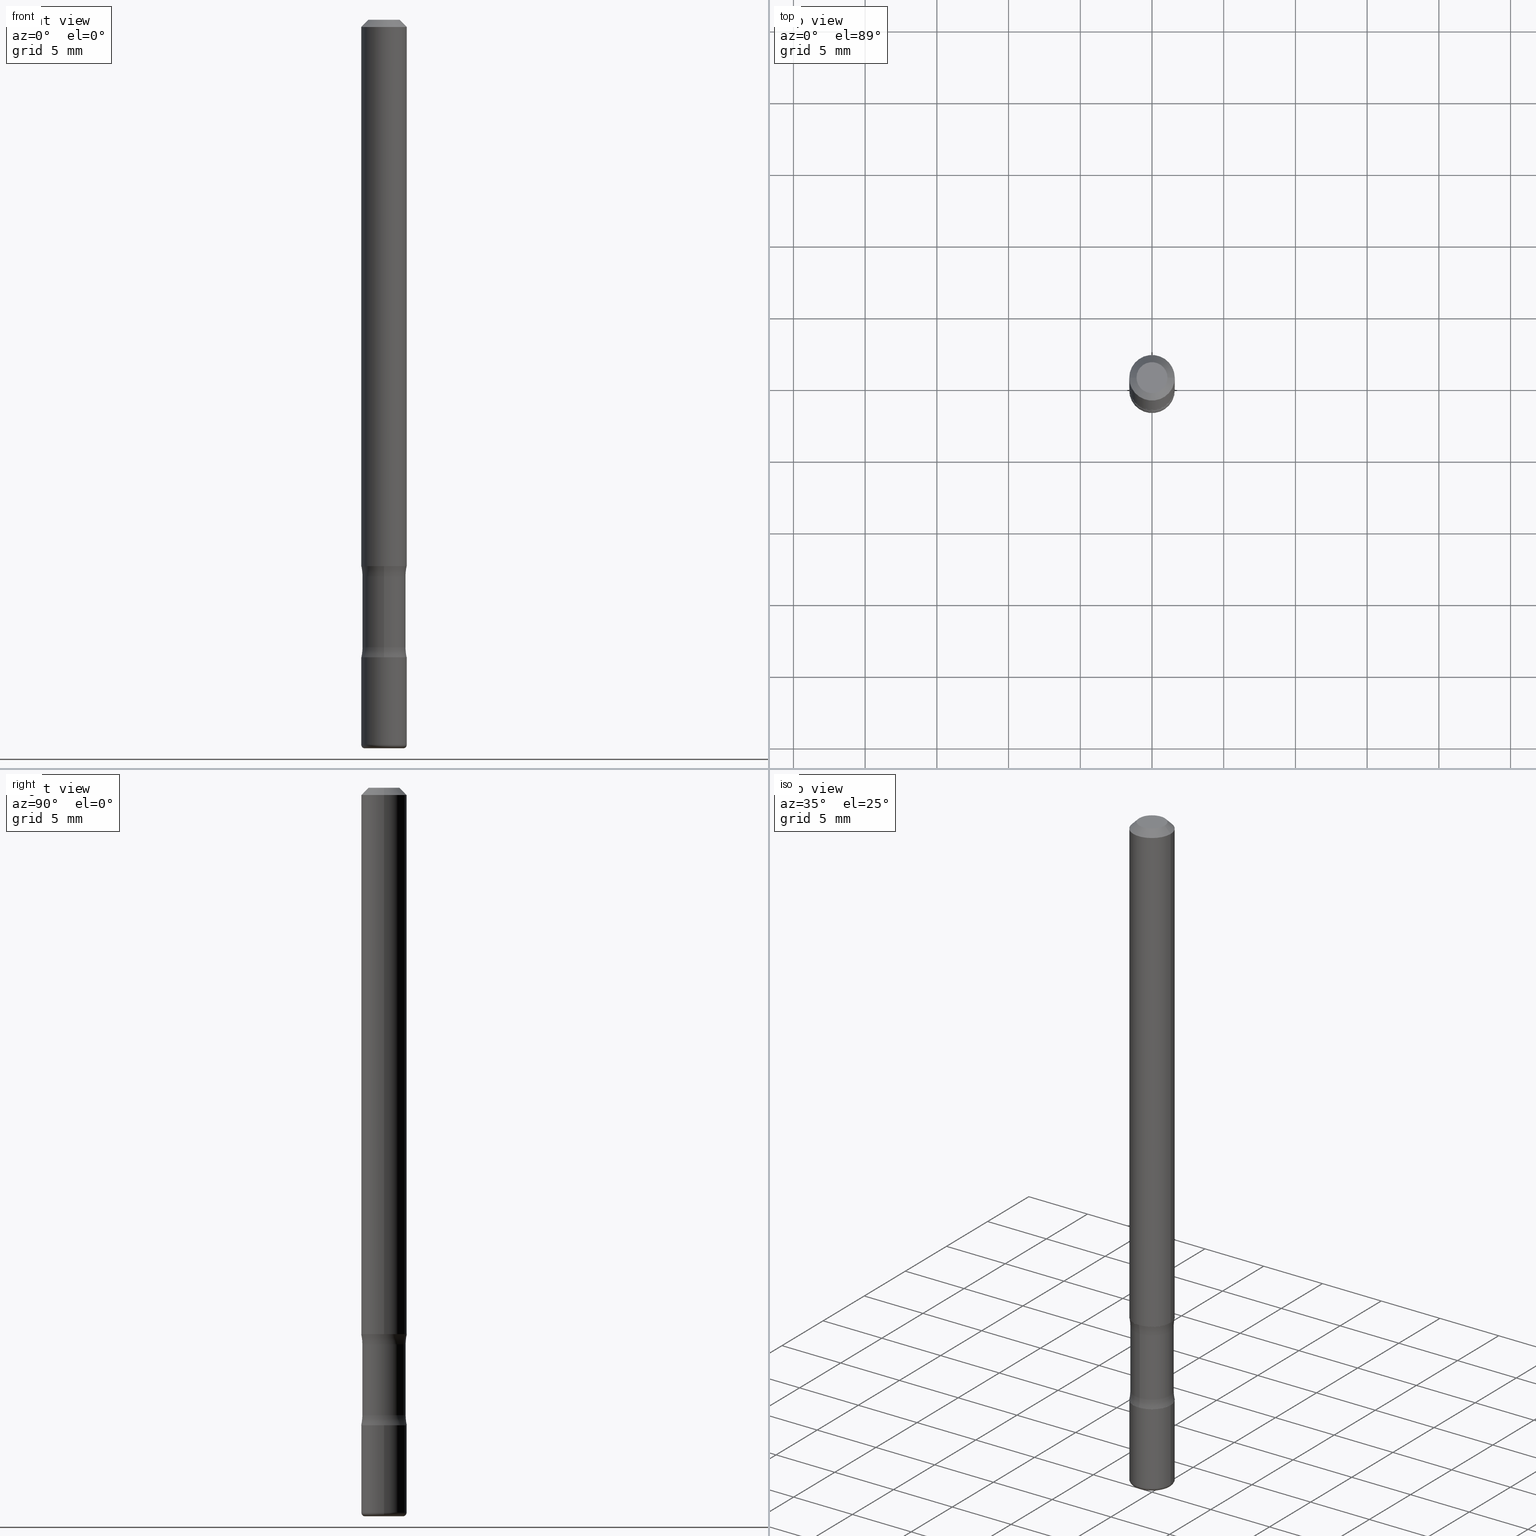
[diagram: canonical four-view strip — front | top / right | iso, engineering-drawing reading convention]
A machine part, canonical four-view strip (front | top / right | iso — engineering-drawing reading convention). The complete STEP part file that produces these views, byte-faithful:
ISO-10303-21;
HEADER;
FILE_DESCRIPTION (( 'STEP AP203' ),
    '1' );
FILE_NAME ('37991.STEP',
    '2024-03-02T02:09:49',
    ( '' ),
    ( '' ),
    'SwSTEP 2.0',
    'SolidWorks 2023',
    '' );
FILE_SCHEMA (( 'CONFIG_CONTROL_DESIGN' ));
ENDSEC;

DATA;
#1 = ORIENTED_EDGE ( 'NONE', *, *, #77, .T. ) ;
#2 = DIRECTION ( 'NONE',  ( -1.000000000000000000, 6.982962677686265922E-15, -4.876176775795935793E-29 ) ) ;
#3 = CARTESIAN_POINT ( 'NONE',  ( -0.06250000000000076328, 4.440892098500680396E-16, -3.074334431409353598E-30 ) ) ;
#4 = VECTOR ( 'NONE', #7, 39.37007874015748143 ) ;
#5 = DIRECTION ( 'NONE',  ( -1.000000000000000000, 6.982962677686265922E-15, -4.883557194083113462E-29 ) ) ;
#6 = ORIENTED_EDGE ( 'NONE', *, *, #362, .T. ) ;
#7 = DIRECTION ( 'NONE',  ( -2.445468806185136877E-29, 3.491481338843145188E-15, 1.000000000000000000 ) ) ;
#8 = DIRECTION ( 'NONE',  ( 8.010757980930134339E-30, -5.846345719468729014E-15, -1.000000000000000000 ) ) ;
#9 = ORIENTED_EDGE ( 'NONE', *, *, #62, .F. ) ;
#10 = DIRECTION ( 'NONE',  ( 6.982962677686267499E-15, 1.000000000000000000, -4.370956789862777762E-15 ) ) ;
#11 = ORIENTED_EDGE ( 'NONE', *, *, #449, .T. ) ;
#12 = CARTESIAN_POINT ( 'NONE',  ( 4.890937612370306439E-31, -6.982962677686338448E-17, -0.02000000000000013572 ) ) ;
#13 = DIRECTION ( 'NONE',  ( 0.000000000000000000, 0.000000000000000000, 1.000000000000000000 ) ) ;
#14 = DIRECTION ( 'NONE',  ( 6.982962677686265922E-15, 1.000000000000000000, -5.846345719468729014E-15 ) ) ;
#15 = EDGE_LOOP ( 'NONE', ( #52, #357, #408, #36 ) ) ;
#16 = DIRECTION ( 'NONE',  ( 6.982962677686265922E-15, 1.000000000000000000, -4.370956789862822727E-15 ) ) ;
#17 = CONICAL_SURFACE ( 'NONE', #466, 0.06250000000000056899, 0.7853981633974477239 ) ;
#18 = CC_DESIGN_APPROVAL ( #226, ( #336 ) ) ;
#19 = DIRECTION ( 'NONE',  ( 1.000000000000000000, -6.982962677686266711E-15, 4.870577812114026993E-29 ) ) ;
#20 = CARTESIAN_POINT ( 'NONE',  ( 4.146134089876587187E-16, 0.05937499999999455713, -1.527775607554112458 ) ) ;
#21 = DATE_AND_TIME ( #29, #205 ) ;
#22 = ORIENTED_EDGE ( 'NONE', *, *, #160, .T. ) ;
#23 = CARTESIAN_POINT ( 'NONE',  ( 0.06250000000000073552, -4.364351673553967477E-16, 3.047610484872495604E-30 ) ) ;
#24 = FACE_OUTER_BOUND ( 'NONE', #225, .T. ) ;
#25 = CARTESIAN_POINT ( 'NONE',  ( 4.079301461300732393E-29, -4.648505913108318079E-15, -1.499999999999998668 ) ) ;
#26 = EDGE_CURVE ( 'NONE', #217, #394, #517, .T. ) ;
#27 = CARTESIAN_POINT ( 'NONE',  ( 3.668203209277701532E-29, -5.237222008264713444E-15, -1.499999999999998668 ) ) ;
#28 = CLOSED_SHELL ( 'NONE', ( #275, #229, #206, #512, #298, #472 ) ) ;
#29 = CALENDAR_DATE ( 2024, 1, 3 ) ;
#30 = DIRECTION ( 'NONE',  ( 2.438088387897960049E-29, -3.491481338843145188E-15, -1.000000000000000000 ) ) ;
#31 = ADVANCED_FACE ( 'NONE', ( #95 ), #43, .T. ) ;
#32 = CIRCLE ( 'NONE', #258, 0.1249999999999999584 ) ;
#33 = AXIS2_PLACEMENT_3D ( 'NONE', #232, #138, #536 ) ;
#34 = EDGE_CURVE ( 'NONE', #211, #347, #546, .T. ) ;
#35 = EDGE_CURVE ( 'NONE', #401, #483, #173, .T. ) ;
#36 = ORIENTED_EDGE ( 'NONE', *, *, #222, .F. ) ;
#37 = SECURITY_CLASSIFICATION_LEVEL ( 'unclassified' ) ;
#38 = CC_DESIGN_PERSON_AND_ORGANIZATION_ASSIGNMENT ( #358, #525, ( #336 ) ) ;
#39 = CIRCLE ( 'NONE', #247, 0.1249999999999999584 ) ;
#40 = DIRECTION ( 'NONE',  ( -6.982962677686266711E-15, -1.000000000000000000, 3.491481338843145583E-15 ) ) ;
#41 = AXIS2_PLACEMENT_3D ( 'NONE', #27, #316, #55 ) ;
#42 = CYLINDRICAL_SURFACE ( 'NONE', #164, 0.06250000000000076328 ) ;
#43 = CYLINDRICAL_SURFACE ( 'NONE', #90, 0.05937499999999967110 ) ;
#44 = DIRECTION ( 'NONE',  ( 2.438088387897960049E-29, -3.491481338843145188E-15, -1.000000000000000000 ) ) ;
#45 = DIRECTION ( 'NONE',  ( -2.445468806185136597E-29, 3.491481338843145583E-15, 1.000000000000000000 ) ) ;
#46 = EDGE_LOOP ( 'NONE', ( #178, #351, #452, #6 ) ) ;
#47 = ADVANCED_FACE ( 'NONE', ( #481 ), #396, .F. ) ;
#48 = APPLICATION_PROTOCOL_DEFINITION ( 'international standard', 'config_control_design', 1994, #172 ) ;
#49 = DIRECTION ( 'NONE',  ( 1.000000000000000000, -6.982962677686265922E-15, 4.876176775795935793E-29 ) ) ;
#50 = DIRECTION ( 'NONE',  ( 6.982962677686266711E-15, 1.000000000000000000, -4.601007147224048087E-15 ) ) ;
#51 = ADVANCED_FACE ( 'NONE', ( #134 ), #42, .T. ) ;
#52 = ORIENTED_EDGE ( 'NONE', *, *, #352, .F. ) ;
#53 = DIRECTION ( 'NONE',  ( 1.000000000000000000, -6.982962677686271444E-15, 0.000000000000000000 ) ) ;
#54 = CIRCLE ( 'NONE', #252, 0.06250000000000090206 ) ;
#55 = DIRECTION ( 'NONE',  ( 1.000000000000000000, -6.982962677686270655E-15, 0.000000000000000000 ) ) ;
#56 = EDGE_LOOP ( 'NONE', ( #516, #271, #1, #445 ) ) ;
#57 = DIRECTION ( 'NONE',  ( 1.000000000000000000, -6.982962677686270655E-15, 0.000000000000000000 ) ) ;
#58 = CARTESIAN_POINT ( 'NONE',  ( 4.890937612370272073E-29, -6.982962677686288799E-15, -1.999999999999999334 ) ) ;
#59 = DIRECTION ( 'NONE',  ( 1.000000000000000000, -6.982962677686271444E-15, 4.883557194083114583E-29 ) ) ;
#60 = DIRECTION ( 'NONE',  ( 6.982962677686265922E-15, 1.000000000000000000, -5.846345719468729014E-15 ) ) ;
#61 = ORIENTED_EDGE ( 'NONE', *, *, #35, .F. ) ;
#62 = EDGE_CURVE ( 'NONE', #88, #103, #148, .T. ) ;
#63 = DIRECTION ( 'NONE',  ( -2.445468806185136597E-29, 3.491481338843145583E-15, 1.000000000000000000 ) ) ;
#64 = CARTESIAN_POINT ( 'NONE',  ( 0.000000000000000000, 0.000000000000000000, 0.000000000000000000 ) ) ;
#65 = ORIENTED_EDGE ( 'NONE', *, *, #115, .F. ) ;
#66 = DIRECTION ( 'NONE',  ( -2.445468806185136597E-29, 3.491481338843145583E-15, 1.000000000000000000 ) ) ;
#67 = DIRECTION ( 'NONE',  ( 1.000000000000000000, -6.860497997771530774E-15, 4.811960108362550720E-29 ) ) ;
#68 = LOCAL_TIME ( 21, 9, 49.00000000000000000, #81 ) ;
#69 = DIRECTION ( 'NONE',  ( -2.445468806185136597E-29, 3.491481338843145583E-15, 1.000000000000000000 ) ) ;
#70 = CARTESIAN_POINT ( 'NONE',  ( 4.866482924308417164E-29, -6.948047864297853205E-15, -1.989999999999998215 ) ) ;
#71 = DATE_TIME_ROLE ( 'classification_date' ) ;
#72 = PERSON_AND_ORGANIZATION ( #439, #482 ) ;
#73 = DIRECTION ( 'NONE',  ( 1.000000000000000000, -6.982962677686270655E-15, 0.000000000000000000 ) ) ;
#74 = DIRECTION ( 'NONE',  ( 7.105427357601001859E-15, 1.000000000000000000, -3.491481338843145583E-15 ) ) ;
#75 = CIRCLE ( 'NONE', #176, 0.01000000000000085022 ) ;
#76 = CIRCLE ( 'NONE', #204, 0.06249999999999997224 ) ;
#77 = EDGE_CURVE ( 'NONE', #221, #126, #307, .T. ) ;
#78 =( NAMED_UNIT ( * ) SI_UNIT ( $, .STERADIAN. ) SOLID_ANGLE_UNIT ( ) );
#79 = CARTESIAN_POINT ( 'NONE',  ( 2.967759138016698062E-16, 0.04250000000000050265, -1.761332880864881203E-16 ) ) ;
#80 = CC_DESIGN_APPROVAL ( #202, ( #309 ) ) ;
#81 = COORDINATED_UNIVERSAL_TIME_OFFSET ( 5, 0, .BEHIND. ) ;
#82 = EDGE_LOOP ( 'NONE', ( #183, #254, #22, #320 ) ) ;
#83 = DIRECTION ( 'NONE',  ( -1.000000000000000000, 6.982962677686265922E-15, -4.883557194083113462E-29 ) ) ;
#84 = EDGE_CURVE ( 'NONE', #93, #390, #39, .T. ) ;
#85 = ORIENTED_EDGE ( 'NONE', *, *, #338, .F. ) ;
#86 = PERSON_AND_ORGANIZATION_ROLE ( 'classification_officer' ) ;
#87 = LINE ( 'NONE', #3, #4 ) ;
#88 = VERTEX_POINT ( 'NONE', #523 ) ;
#89 = ORIENTED_EDGE ( 'NONE', *, *, #156, .F. ) ;
#90 = AXIS2_PLACEMENT_3D ( 'NONE', #264, #441, #50 ) ;
#91 = APPROVAL_PERSON_ORGANIZATION ( #108, #505, #278 ) ;
#92 = CARTESIAN_POINT ( 'NONE',  ( 4.364351673554390997E-16, 0.06249999999999455297, -1.749999999999999334 ) ) ;
#93 = VERTEX_POINT ( 'NONE', #92 ) ;
#94 = LINE ( 'NONE', #391, #190 ) ;
#95 = FACE_OUTER_BOUND ( 'NONE', #141, .T. ) ;
#96 = ORIENTED_EDGE ( 'NONE', *, *, #492, .F. ) ;
#97 = ORIENTED_EDGE ( 'NONE', *, *, #449, .F. ) ;
#98 = CARTESIAN_POINT ( 'NONE',  ( 4.866482924308417164E-29, -6.948047864297853205E-15, -1.989999999999998215 ) ) ;
#99 = VECTOR ( 'NONE', #130, 39.37007874015748143 ) ;
#100 = ORIENTED_EDGE ( 'NONE', *, *, #438, .F. ) ;
#101 = CIRCLE ( 'NONE', #420, 0.04250000000000050265 ) ;
#102 = DIRECTION ( 'NONE',  ( 6.860497997771531562E-15, 1.000000000000000000, 0.000000000000000000 ) ) ;
#103 = VERTEX_POINT ( 'NONE', #389 ) ;
#104 = DIRECTION ( 'NONE',  ( 8.010757980930134339E-30, -5.846345719468729014E-15, -1.000000000000000000 ) ) ;
#105 = ADVANCED_FACE ( 'NONE', ( #478 ), #393, .F. ) ;
#106 = ORIENTED_EDGE ( 'NONE', *, *, #201, .T. ) ;
#107 = CYLINDRICAL_SURFACE ( 'NONE', #289, 0.06250000000000073552 ) ;
#108 = PERSON_AND_ORGANIZATION ( #439, #482 ) ;
#109 = CARTESIAN_POINT ( 'NONE',  ( 4.146134089876643393E-16, 0.05937499999999401590, -1.722224392445885544 ) ) ;
#110 = MANIFOLD_SOLID_BREP ( 'Body-Move/Copy2[2]', #28 ) ;
#111 = CARTESIAN_POINT ( 'NONE',  ( 0.06250000000000056899, -4.986107516375879651E-16, -0.02000000000000013572 ) ) ;
#112 = PLANE ( 'NONE',  #535 ) ;
#113 = CONICAL_SURFACE ( 'NONE', #143, 0.06250000000000056899, 0.7853981633974477239 ) ;
#114 = CIRCLE ( 'NONE', #509, 0.05937499999999996253 ) ;
#115 = EDGE_CURVE ( 'NONE', #432, #267, #256, .T. ) ;
#116 = CARTESIAN_POINT ( 'NONE',  ( -2.417785108228764368E-28, -4.861112258114085426E-14, -1.999999999999998890 ) ) ;
#117 = EDGE_CURVE ( 'NONE', #221, #390, #349, .T. ) ;
#118 = APPROVAL_DATE_TIME ( #21, #202 ) ;
#119 = CIRCLE ( 'NONE', #388, 0.05250000000000046296 ) ;
#120 = CIRCLE ( 'NONE', #494, 0.06250000000000062450 ) ;
#121 = TOROIDAL_SURFACE ( 'NONE', #237, 0.1843749999999994560, 0.1250000000000000000 ) ;
#122 = PERSON_AND_ORGANIZATION_ROLE ( 'design_supplier' ) ;
#123 = ORIENTED_EDGE ( 'NONE', *, *, #84, .F. ) ;
#124 = EDGE_CURVE ( 'NONE', #221, #242, #493, .T. ) ;
#125 = ORIENTED_EDGE ( 'NONE', *, *, #507, .F. ) ;
#126 = VERTEX_POINT ( 'NONE', #261 ) ;
#127 = FACE_OUTER_BOUND ( 'NONE', #135, .T. ) ;
#128 = ORIENTED_EDGE ( 'NONE', *, *, #507, .T. ) ;
#129 = DIRECTION ( 'NONE',  ( 8.010757980930134339E-30, -5.846345719468729014E-15, -1.000000000000000000 ) ) ;
#130 = DIRECTION ( 'NONE',  ( -0.7071067811865471286, 2.468850131082252722E-15, -0.7071067811865479058 ) ) ;
#131 = APPROVAL_ROLE ( '' ) ;
#132 = EDGE_LOOP ( 'NONE', ( #97, #140, #168, #123 ) ) ;
#133 = PLANE ( 'NONE',  #199 ) ;
#134 = FACE_OUTER_BOUND ( 'NONE', #429, .T. ) ;
#135 = EDGE_LOOP ( 'NONE', ( #497, #61 ) ) ;
#136 = COORDINATED_UNIVERSAL_TIME_OFFSET ( 5, 0, .BEHIND. ) ;
#137 = DATE_TIME_ROLE ( 'creation_date' ) ;
#138 = DIRECTION ( 'NONE',  ( 8.010757980930134339E-30, -5.846345719468729014E-15, -1.000000000000000000 ) ) ;
#139 = CARTESIAN_POINT ( 'NONE',  ( -1.264904318339082863E-15, -0.1843750000000058675, -1.722224392445883545 ) ) ;
#140 = ORIENTED_EDGE ( 'NONE', *, *, #198, .T. ) ;
#141 = EDGE_LOOP ( 'NONE', ( #144, #400, #473, #231 ) ) ;
#142 = DIRECTION ( 'NONE',  ( 6.982962677686265922E-15, 1.000000000000000000, -5.846345719468729014E-15 ) ) ;
#143 = AXIS2_PLACEMENT_3D ( 'NONE', #244, #150, #526 ) ;
#144 = ORIENTED_EDGE ( 'NONE', *, *, #124, .T. ) ;
#145 = TOROIDAL_SURFACE ( 'NONE', #212, 0.1843749999999994560, 0.1250000000000000000 ) ;
#146 = CC_DESIGN_PERSON_AND_ORGANIZATION_ASSIGNMENT ( #72, #235, ( #340 ) ) ;
#147 = DIRECTION ( 'NONE',  ( 8.010757980930134339E-30, -5.846345719468729014E-15, -1.000000000000000000 ) ) ;
#148 = CIRCLE ( 'NONE', #162, 0.06250000000000062450 ) ;
#149 = DIRECTION ( 'NONE',  ( -2.445468806185136597E-29, 3.491481338843145583E-15, 1.000000000000000000 ) ) ;
#150 = DIRECTION ( 'NONE',  ( 2.445468806185136597E-29, -3.491481338843145583E-15, -1.000000000000000000 ) ) ;
#151 = LINE ( 'NONE', #23, #345 ) ;
#152 = DIRECTION ( 'NONE',  ( 6.982962677686265922E-15, 1.000000000000000000, -4.370956789862822727E-15 ) ) ;
#153 = DIRECTION ( 'NONE',  ( 1.000000000000000000, -6.982962677686270655E-15, 0.000000000000000000 ) ) ;
#154 = ORIENTED_EDGE ( 'NONE', *, *, #62, .T. ) ;
#155 = FACE_OUTER_BOUND ( 'NONE', #273, .T. ) ;
#156 = EDGE_CURVE ( 'NONE', #126, #314, #369, .T. ) ;
#157 = COORDINATED_UNIVERSAL_TIME_OFFSET ( 5, 0, .BEHIND. ) ;
#158 = AXIS2_PLACEMENT_3D ( 'NONE', #522, #315, #299 ) ;
#159 = AXIS2_PLACEMENT_3D ( 'NONE', #360, #175, #208 ) ;
#160 = EDGE_CURVE ( 'NONE', #314, #126, #76, .T. ) ;
#161 = CARTESIAN_POINT ( 'NONE',  ( 1.287483743698442698E-15, 0.1843749999999946820, -1.527775607554112680 ) ) ;
#162 = AXIS2_PLACEMENT_3D ( 'NONE', #224, #45, #306 ) ;
#163 = CIRCLE ( 'NONE', #33, 0.06250000000000062450 ) ;
#164 = AXIS2_PLACEMENT_3D ( 'NONE', #300, #519, #440 ) ;
#165 = DIRECTION ( 'NONE',  ( 8.010757980930134339E-30, -5.846345719468729014E-15, -1.000000000000000000 ) ) ;
#166 = ORIENTED_EDGE ( 'NONE', *, *, #381, .F. ) ;
#167 = DIRECTION ( 'NONE',  ( 8.010757980930134339E-30, -5.846345719468729014E-15, -1.000000000000000000 ) ) ;
#168 = ORIENTED_EDGE ( 'NONE', *, *, #492, .T. ) ;
#169 = DIRECTION ( 'NONE',  ( -2.445468806185136597E-29, 3.491481338843145583E-15, 1.000000000000000000 ) ) ;
#170 = PRODUCT_RELATED_PRODUCT_CATEGORY ( 'detail', '', ( #203 ) ) ;
#171 = EDGE_LOOP ( 'NONE', ( #192, #11 ) ) ;
#172 = APPLICATION_CONTEXT ( 'configuration controlled 3d designs of mechanical parts and assemblies' ) ;
#173 = CIRCLE ( 'NONE', #41, 0.06250000000000090206 ) ;
#174 = EDGE_LOOP ( 'NONE', ( #262, #154 ) ) ;
#175 = DIRECTION ( 'NONE',  ( 8.010757980930134339E-30, -5.846345719468729014E-15, -1.000000000000000000 ) ) ;
#176 = AXIS2_PLACEMENT_3D ( 'NONE', #475, #40, #435 ) ;
#177 = DIRECTION ( 'NONE',  ( -8.010757980930137142E-30, 5.846345719468729014E-15, 1.000000000000000000 ) ) ;
#178 = ORIENTED_EDGE ( 'NONE', *, *, #198, .F. ) ;
#179 = DATE_AND_TIME ( #227, #520 ) ;
#180 = LINE ( 'NONE', #550, #467 ) ;
#181 = ADVANCED_FACE ( 'NONE', ( #503 ), #121, .F. ) ;
#182 = DIRECTION ( 'NONE',  ( 1.000000000000000000, -6.982962677686265922E-15, 4.876176775795935793E-29 ) ) ;
#183 = ORIENTED_EDGE ( 'NONE', *, *, #301, .F. ) ;
#184 = CARTESIAN_POINT ( 'NONE',  ( 4.117655442741518235E-29, -4.787830424982076550E-15, -1.527775607554111570 ) ) ;
#185 = EDGE_CURVE ( 'NONE', #347, #479, #518, .T. ) ;
#186 = ORIENTED_EDGE ( 'NONE', *, *, #115, .T. ) ;
#187 = FACE_OUTER_BOUND ( 'NONE', #387, .T. ) ;
#188 = DIRECTION ( 'NONE',  ( 8.010757980930134339E-30, -5.846345719468729014E-15, -1.000000000000000000 ) ) ;
#189 = AXIS2_PLACEMENT_3D ( 'NONE', #12, #319, #197 ) ;
#190 = VECTOR ( 'NONE', #437, 39.37007874015748143 ) ;
#191 = DIRECTION ( 'NONE',  ( 6.982962677686265922E-15, 1.000000000000000000, -5.846345719468729014E-15 ) ) ;
#192 = ORIENTED_EDGE ( 'NONE', *, *, #458, .T. ) ;
#193 = FACE_OUTER_BOUND ( 'NONE', #82, .T. ) ;
#194 = FACE_OUTER_BOUND ( 'NONE', #218, .T. ) ;
#195 = ORIENTED_EDGE ( 'NONE', *, *, #490, .F. ) ;
#196 = DIRECTION ( 'NONE',  ( -2.445468806185136877E-29, 3.491481338843145188E-15, 1.000000000000000000 ) ) ;
#197 = DIRECTION ( 'NONE',  ( 1.000000000000000000, -6.982962677686265922E-15, 0.000000000000000000 ) ) ;
#198 = EDGE_CURVE ( 'NONE', #499, #446, #32, .T. ) ;
#199 = AXIS2_PLACEMENT_3D ( 'NONE', #348, #305, #49 ) ;
#200 = CIRCLE ( 'NONE', #251, 0.06250000000000056899 ) ;
#201 = EDGE_CURVE ( 'NONE', #211, #312, #119, .T. ) ;
#202 = APPROVAL ( #374, 'UNSPECIFIED' ) ;
#203 = PRODUCT ( '37991', '37991', '', ( #548 ) ) ;
#204 = AXIS2_PLACEMENT_3D ( 'NONE', #25, #377, #152 ) ;
#205 = LOCAL_TIME ( 21, 9, 49.00000000000000000, #418 ) ;
#206 = ADVANCED_FACE ( 'NONE', ( #370 ), #113, .T. ) ;
#207 = EDGE_CURVE ( 'NONE', #312, #211, #245, .T. ) ;
#208 = DIRECTION ( 'NONE',  ( 6.982962677686265133E-15, 1.000000000000000000, -4.601007147224025211E-15 ) ) ;
#209 = DIRECTION ( 'NONE',  ( 6.982962677686266711E-15, 1.000000000000000000, -4.601007147224070964E-15 ) ) ;
#210 = TOROIDAL_SURFACE ( 'NONE', #508, 0.05250000000000046296, 0.01000000000000085022 ) ;
#211 = VERTEX_POINT ( 'NONE', #285 ) ;
#212 = AXIS2_PLACEMENT_3D ( 'NONE', #184, #453, #14 ) ;
#213 = CARTESIAN_POINT ( 'NONE',  ( 1.287483743698447629E-15, 0.1843749999999939881, -1.722224392445885766 ) ) ;
#214 = ORIENTED_EDGE ( 'NONE', *, *, #301, .T. ) ;
#215 = PERSON_AND_ORGANIZATION ( #439, #482 ) ;
#216 = DIRECTION ( 'NONE',  ( -6.982962677686265922E-15, -1.000000000000000000, 5.846345719468729014E-15 ) ) ;
#217 = VERTEX_POINT ( 'NONE', #409 ) ;
#218 = EDGE_LOOP ( 'NONE', ( #257, #186, #486, #427 ) ) ;
#219 = DATE_AND_TIME ( #487, #551 ) ;
#220 = AXIS2_PLACEMENT_3D ( 'NONE', #98, #447, #57 ) ;
#221 = VERTEX_POINT ( 'NONE', #20 ) ;
#222 = EDGE_CURVE ( 'NONE', #394, #267, #469, .T. ) ;
#223 = CARTESIAN_POINT ( 'NONE',  ( 0.06250000000000076328, -4.364351673553969942E-16, 3.047610484872497355E-30 ) ) ;
#224 = CARTESIAN_POINT ( 'NONE',  ( 4.279570410823987363E-29, -6.110092342975501516E-15, -1.749999999999999112 ) ) ;
#225 = EDGE_LOOP ( 'NONE', ( #442, #398, #303, #85 ) ) ;
#226 = APPROVAL ( #395, 'UNSPECIFIED' ) ;
#227 = CALENDAR_DATE ( 2024, 1, 3 ) ;
#228 = CARTESIAN_POINT ( 'NONE',  ( -4.287811248606822657E-16, -0.06250000000000677236, -1.749999999999998890 ) ) ;
#229 = ADVANCED_FACE ( 'NONE', ( #194 ), #17, .T. ) ;
#230 = CARTESIAN_POINT ( 'NONE',  ( 4.890937612370272073E-29, -6.982962677686288799E-15, -1.999999999999999334 ) ) ;
#231 = ORIENTED_EDGE ( 'NONE', *, *, #117, .F. ) ;
#232 = CARTESIAN_POINT ( 'NONE',  ( 4.279570410823986242E-29, -6.110092342975502304E-15, -1.749999999999999112 ) ) ;
#233 = CARTESIAN_POINT ( 'NONE',  ( 4.890937612370306439E-31, -6.982962677686338448E-17, -0.02000000000000013572 ) ) ;
#234 = DIRECTION ( 'NONE',  ( 1.000000000000000000, 0.000000000000000000, 0.000000000000000000 ) ) ;
#235 = PERSON_AND_ORGANIZATION_ROLE ( 'creator' ) ;
#236 = DIRECTION ( 'NONE',  ( 1.000000000000000000, -6.982962677686265922E-15, 4.876176775795935793E-29 ) ) ;
#237 = AXIS2_PLACEMENT_3D ( 'NONE', #239, #147, #191 ) ;
#238 = CC_DESIGN_APPROVAL ( #505, ( #340 ) ) ;
#239 = CARTESIAN_POINT ( 'NONE',  ( 4.117655442741518235E-29, -4.787830424982076550E-15, -1.527775607554111570 ) ) ;
#240 = DATE_AND_TIME ( #288, #332 ) ;
#241 = CARTESIAN_POINT ( 'NONE',  ( 1.357006838635785746E-45, -1.937446121494581442E-31, -5.549066237130534971E-17 ) ) ;
#242 = VERTEX_POINT ( 'NONE', #325 ) ;
#243 = FACE_OUTER_BOUND ( 'NONE', #527, .T. ) ;
#244 = CARTESIAN_POINT ( 'NONE',  ( 4.890937612370306439E-31, -6.982962677686338448E-17, -0.02000000000000013572 ) ) ;
#245 = CIRCLE ( 'NONE', #549, 0.05250000000000046296 ) ;
#246 = CIRCLE ( 'NONE', #269, 0.04250000000000050265 ) ;
#247 = AXIS2_PLACEMENT_3D ( 'NONE', #213, #5, #560 ) ;
#248 = CC_DESIGN_DATE_AND_TIME_ASSIGNMENT ( #179, #137, ( #336 ) ) ;
#249 = CARTESIAN_POINT ( 'NONE',  ( 4.866482924308417164E-29, -6.948047864297853205E-15, -1.989999999999998215 ) ) ;
#250 = ADVANCED_FACE ( 'NONE', ( #464 ), #112, .F. ) ;
#251 = AXIS2_PLACEMENT_3D ( 'NONE', #559, #169, #353 ) ;
#252 = AXIS2_PLACEMENT_3D ( 'NONE', #461, #498, #153 ) ;
#253 = CALENDAR_DATE ( 2024, 1, 3 ) ;
#254 = ORIENTED_EDGE ( 'NONE', *, *, #286, .T. ) ;
#255 = ADVANCED_FACE ( 'NONE', ( #187 ), #210, .T. ) ;
#256 = LINE ( 'NONE', #311, #552 ) ;
#257 = ORIENTED_EDGE ( 'NONE', *, *, #468, .F. ) ;
#258 = AXIS2_PLACEMENT_3D ( 'NONE', #139, #537, #102 ) ;
#259 = ORIENTED_EDGE ( 'NONE', *, *, #342, .T. ) ;
#260 = CARTESIAN_POINT ( 'NONE',  ( -4.287811248606790116E-16, -0.06250000000000452416, -1.499999999999998446 ) ) ;
#261 = CARTESIAN_POINT ( 'NONE',  ( 4.364351673554319013E-16, 0.06249999999999526074, -1.499999999999999112 ) ) ;
#262 = ORIENTED_EDGE ( 'NONE', *, *, #322, .T. ) ;
#263 = APPLICATION_CONTEXT ( 'configuration controlled 3d designs of mechanical parts and assemblies' ) ;
#264 = CARTESIAN_POINT ( 'NONE',  ( 4.479839360347238409E-29, -7.571678772842681008E-15, -1.999999999999998446 ) ) ;
#265 = CARTESIAN_POINT ( 'NONE',  ( 0.05250000000000046296, -7.349568218264821903E-15, -1.999999999999999334 ) ) ;
#266 = ADVANCED_FACE ( 'NONE', ( #243 ), #372, .T. ) ;
#267 = VERTEX_POINT ( 'NONE', #111 ) ;
#268 = AXIS2_PLACEMENT_3D ( 'NONE', #161, #83, #344 ) ;
#269 = AXIS2_PLACEMENT_3D ( 'NONE', #241, #149, #19 ) ;
#270 = DIRECTION ( 'NONE',  ( 8.010757980930134339E-30, -5.846345719468729014E-15, -1.000000000000000000 ) ) ;
#271 = ORIENTED_EDGE ( 'NONE', *, *, #124, .F. ) ;
#272 = DIRECTION ( 'NONE',  ( 2.445468806185136597E-29, -3.491481338843145583E-15, -1.000000000000000000 ) ) ;
#273 = EDGE_LOOP ( 'NONE', ( #368, #524 ) ) ;
#274 = FACE_OUTER_BOUND ( 'NONE', #132, .T. ) ;
#275 = ADVANCED_FACE ( 'NONE', ( #416 ), #107, .T. ) ;
#276 = ORIENTED_EDGE ( 'NONE', *, *, #34, .F. ) ;
#277 = DIRECTION ( 'NONE',  ( -2.445468806185136597E-29, 3.491481338843145583E-15, 1.000000000000000000 ) ) ;
#278 = APPROVAL_ROLE ( '' ) ;
#279 = CARTESIAN_POINT ( 'NONE',  ( -4.180615967391622360E-16, -0.05937500000000592304, -1.722224392445884877 ) ) ;
#280 = CARTESIAN_POINT ( 'NONE',  ( 0.000000000000000000, 0.000000000000000000, 0.000000000000000000 ) ) ;
#281 = CARTESIAN_POINT ( 'NONE',  ( 4.259337010429733699E-29, -5.944818127683673811E-15, -1.722224392445884655 ) ) ;
#282 = AXIS2_PLACEMENT_3D ( 'NONE', #412, #361, #73 ) ;
#283 = TOROIDAL_SURFACE ( 'NONE', #515, 0.1843749999999999278, 0.1249999999999999584 ) ;
#284 = DIRECTION ( 'NONE',  ( -2.445468806185136597E-29, 3.491481338843145583E-15, 1.000000000000000000 ) ) ;
#285 = CARTESIAN_POINT ( 'NONE',  ( -0.05250000000000046296, -6.556943197930007510E-15, -1.999999999999999334 ) ) ;
#286 = EDGE_CURVE ( 'NONE', #242, #314, #339, .T. ) ;
#287 = DESIGN_CONTEXT ( 'detailed design', #172, 'design' ) ;
#288 = CALENDAR_DATE ( 2024, 1, 3 ) ;
#289 = AXIS2_PLACEMENT_3D ( 'NONE', #280, #277, #182 ) ;
#290 = AXIS2_PLACEMENT_3D ( 'NONE', #79, #44, #392 ) ;
#291 = AXIS2_PLACEMENT_3D ( 'NONE', #428, #129, #209 ) ;
#292 = ADVANCED_FACE ( 'NONE', ( #155 ), #333, .T. ) ;
#293 = MANIFOLD_SOLID_BREP ( 'Body-Move/Copy2[1]', #343 ) ;
#294 = AXIS2_PLACEMENT_3D ( 'NONE', #249, #450, #59 ) ;
#295 = ADVANCED_FACE ( 'NONE', ( #528 ), #558, .T. ) ;
#296 = PERSON_AND_ORGANIZATION ( #439, #482 ) ;
#297 = DIRECTION ( 'NONE',  ( 8.010757980930137142E-30, -5.846345719468729014E-15, -1.000000000000000000 ) ) ;
#298 = ADVANCED_FACE ( 'NONE', ( #127 ), #133, .F. ) ;
#299 = DIRECTION ( 'NONE',  ( 6.982962677686266711E-15, 1.000000000000000000, -4.601007147224070964E-15 ) ) ;
#300 = CARTESIAN_POINT ( 'NONE',  ( 0.000000000000000000, 0.000000000000000000, 0.000000000000000000 ) ) ;
#301 = EDGE_CURVE ( 'NONE', #242, #221, #514, .T. ) ;
#302 = CC_DESIGN_DATE_AND_TIME_ASSIGNMENT ( #426, #71, ( #309 ) ) ;
#303 = ORIENTED_EDGE ( 'NONE', *, *, #495, .F. ) ;
#304 = PERSON_AND_ORGANIZATION ( #439, #482 ) ;
#305 = DIRECTION ( 'NONE',  ( -2.438088387897960049E-29, 3.491481338843145188E-15, 1.000000000000000000 ) ) ;
#306 = DIRECTION ( 'NONE',  ( 1.000000000000000000, -6.982962677686271444E-15, 0.000000000000000000 ) ) ;
#307 = CIRCLE ( 'NONE', #268, 0.1250000000000000000 ) ;
#308 = EDGE_LOOP ( 'NONE', ( #363, #554, #359, #195 ) ) ;
#309 = SECURITY_CLASSIFICATION ( '', '', #37 ) ;
#310 = DIRECTION ( 'NONE',  ( -2.445468806185136597E-29, 3.491481338843145583E-15, 1.000000000000000000 ) ) ;
#311 = CARTESIAN_POINT ( 'NONE',  ( 0.06250000000000056899, -4.986107516375879651E-16, -0.02000000000000013572 ) ) ;
#312 = VERTEX_POINT ( 'NONE', #265 ) ;
#313 = COORDINATED_UNIVERSAL_TIME_OFFSET ( 5, 0, .BEHIND. ) ;
#314 = VERTEX_POINT ( 'NONE', #260 ) ;
#315 = DIRECTION ( 'NONE',  ( 8.010757980930134339E-30, -5.846345719468729014E-15, -1.000000000000000000 ) ) ;
#316 = DIRECTION ( 'NONE',  ( -2.445468806185136597E-29, 3.491481338843145583E-15, 1.000000000000000000 ) ) ;
#317 = CARTESIAN_POINT ( 'NONE',  ( -0.06250000000000056899, 3.666055405785322169E-16, -0.02000000000000013572 ) ) ;
#318 = CARTESIAN_POINT ( 'NONE',  ( 4.259337010429733699E-29, -5.944818127683673811E-15, -1.722224392445884655 ) ) ;
#319 = DIRECTION ( 'NONE',  ( -2.445468806185136597E-29, 3.491481338843145583E-15, 1.000000000000000000 ) ) ;
#320 = ORIENTED_EDGE ( 'NONE', *, *, #77, .F. ) ;
#321 = AXIS2_PLACEMENT_3D ( 'NONE', #532, #8, #506 ) ;
#322 = EDGE_CURVE ( 'NONE', #103, #88, #480, .T. ) ;
#323 = ORIENTED_EDGE ( 'NONE', *, *, #322, .F. ) ;
#324 = CARTESIAN_POINT ( 'NONE',  ( 0.04250000000000050265, -3.950909582714408367E-16, -5.549066237130292766E-17 ) ) ;
#325 = CARTESIAN_POINT ( 'NONE',  ( -4.180615967391589820E-16, -0.05937500000000418832, -1.527775607554111792 ) ) ;
#326 = SHAPE_DEFINITION_REPRESENTATION ( #378, #451 ) ;
#327 = FACE_OUTER_BOUND ( 'NONE', #15, .T. ) ;
#328 = DIRECTION ( 'NONE',  ( -1.000000000000000000, 6.982962677686265922E-15, 0.000000000000000000 ) ) ;
#329 = ORIENTED_EDGE ( 'NONE', *, *, #338, .T. ) ;
#330 = CARTESIAN_POINT ( 'NONE',  ( -0.06250000000000056899, 3.666055405785322169E-16, -0.02000000000000013572 ) ) ;
#331 = DIRECTION ( 'NONE',  ( 8.010757980930134339E-30, -5.846345719468729014E-15, -1.000000000000000000 ) ) ;
#332 = LOCAL_TIME ( 21, 9, 49.00000000000000000, #157 ) ;
#333 = PLANE ( 'NONE',  #424 ) ;
#334 = UNCERTAINTY_MEASURE_WITH_UNIT (LENGTH_MEASURE( 1.000000000000000082E-05 ), #470, 'distance_accuracy_value', 'NONE');
#335 = PERSON_AND_ORGANIZATION ( #439, #482 ) ;
#336 = PRODUCT_DEFINITION ( 'UNKNOWN', '', #340, #287 ) ;
#337 = LENGTH_MEASURE_WITH_UNIT ( LENGTH_MEASURE( 0.02539999999999999897 ), #375 );
#338 = EDGE_CURVE ( 'NONE', #312, #479, #75, .T. ) ;
#339 = CIRCLE ( 'NONE', #533, 0.1250000000000000000 ) ;
#340 = PRODUCT_DEFINITION_FORMATION_WITH_SPECIFIED_SOURCE ( 'ANY', '', #203, .NOT_KNOWN. ) ;
#341 = DIRECTION ( 'NONE',  ( -2.445468806185136877E-29, 3.491481338843145188E-15, 1.000000000000000000 ) ) ;
#342 = EDGE_CURVE ( 'NONE', #347, #88, #87, .T. ) ;
#343 = CLOSED_SHELL ( 'NONE', ( #295, #545, #292, #255, #51, #250 ) ) ;
#344 = DIRECTION ( 'NONE',  ( -6.982962677686265922E-15, -1.000000000000000000, 0.000000000000000000 ) ) ;
#345 = VECTOR ( 'NONE', #196, 39.37007874015748143 ) ;
#346 = ORIENTED_EDGE ( 'NONE', *, *, #222, .T. ) ;
#347 = VERTEX_POINT ( 'NONE', #484 ) ;
#348 = CARTESIAN_POINT ( 'NONE',  ( 3.668203209277701532E-29, -5.237222008264713444E-15, -1.499999999999998668 ) ) ;
#349 = LINE ( 'NONE', #485, #366 ) ;
#350 = EDGE_LOOP ( 'NONE', ( #538, #259, #323, #125 ) ) ;
#351 = ORIENTED_EDGE ( 'NONE', *, *, #458, .F. ) ;
#352 = EDGE_CURVE ( 'NONE', #401, #394, #94, .T. ) ;
#353 = DIRECTION ( 'NONE',  ( 1.000000000000000000, -6.982962677686265922E-15, 0.000000000000000000 ) ) ;
#354 = AXIS2_PLACEMENT_3D ( 'NONE', #385, #165, #16 ) ;
#355 = EDGE_LOOP ( 'NONE', ( #65, #100, #489, #346 ) ) ;
#356 = CIRCLE ( 'NONE', #159, 0.05937499999999996253 ) ;
#357 = ORIENTED_EDGE ( 'NONE', *, *, #35, .T. ) ;
#358 = PERSON_AND_ORGANIZATION ( #439, #482 ) ;
#359 = ORIENTED_EDGE ( 'NONE', *, *, #541, .F. ) ;
#360 = CARTESIAN_POINT ( 'NONE',  ( 4.257320043835055680E-29, -5.947706538645865427E-15, -1.722224392445885321 ) ) ;
#361 = DIRECTION ( 'NONE',  ( -2.445468806185136597E-29, 3.491481338843145583E-15, 1.000000000000000000 ) ) ;
#362 = EDGE_CURVE ( 'NONE', #390, #446, #356, .T. ) ;
#363 = ORIENTED_EDGE ( 'NONE', *, *, #430, .T. ) ;
#364 = LINE ( 'NONE', #223, #431 ) ;
#365 = DIRECTION ( 'NONE',  ( 1.000000000000000000, -6.982962677686271444E-15, 4.883557194083114583E-29 ) ) ;
#366 = VECTOR ( 'NONE', #167, 39.37007874015748143 ) ;
#367 = APPROVAL_PERSON_ORGANIZATION ( #215, #226, #131 ) ;
#368 = ORIENTED_EDGE ( 'NONE', *, *, #207, .F. ) ;
#369 = CIRCLE ( 'NONE', #354, 0.06249999999999997224 ) ;
#370 = FACE_OUTER_BOUND ( 'NONE', #355, .T. ) ;
#371 = CARTESIAN_POINT ( 'NONE',  ( 0.06250000000000111022, -7.384483031653253552E-15, -1.989999999999998215 ) ) ;
#372 = CYLINDRICAL_SURFACE ( 'NONE', #321, 0.05937499999999967110 ) ;
#373 = CARTESIAN_POINT ( 'NONE',  ( -0.05250000000000046296, -6.575012928023797515E-15, -1.989999999999998215 ) ) ;
#374 = APPROVAL_STATUS ( 'not_yet_approved' ) ;
#375 =( LENGTH_UNIT ( ) NAMED_UNIT ( * ) SI_UNIT ( $, .METRE. ) );
#376 = CARTESIAN_POINT ( 'NONE',  ( 4.257320043835055680E-29, -5.947706538645865427E-15, -1.722224392445885321 ) ) ;
#377 = DIRECTION ( 'NONE',  ( 8.010757980930134339E-30, -5.846345719468729014E-15, -1.000000000000000000 ) ) ;
#378 = PRODUCT_DEFINITION_SHAPE ( 'NONE', 'NONE',  #336 ) ;
#379 = AXIS2_PLACEMENT_3D ( 'NONE', #433, #476, #555 ) ;
#380 = APPROVAL_PERSON_ORGANIZATION ( #335, #202, #413 ) ;
#381 = EDGE_CURVE ( 'NONE', #242, #446, #180, .T. ) ;
#382 = PERSON_AND_ORGANIZATION_ROLE ( 'design_owner' ) ;
#383 = ORIENTED_EDGE ( 'NONE', *, *, #438, .T. ) ;
#384 = CLOSED_SHELL ( 'NONE', ( #31, #414, #417, #181, #105, #47, #403, #266 ) ) ;
#385 = CARTESIAN_POINT ( 'NONE',  ( 4.079301461300732393E-29, -4.648505913108318079E-15, -1.499999999999998668 ) ) ;
#386 = TOROIDAL_SURFACE ( 'NONE', #547, 0.1843749999999999278, 0.1249999999999999584 ) ;
#387 = EDGE_LOOP ( 'NONE', ( #276, #106, #329, #529 ) ) ;
#388 = AXIS2_PLACEMENT_3D ( 'NONE', #230, #500, #448 ) ;
#389 = CARTESIAN_POINT ( 'NONE',  ( 0.06250000000000062450, -6.546527510330897918E-15, -1.749999999999999112 ) ) ;
#390 = VERTEX_POINT ( 'NONE', #109 ) ;
#391 = CARTESIAN_POINT ( 'NONE',  ( -0.06250000000000073552, 4.440892098500678424E-16, -3.074334431409351847E-30 ) ) ;
#392 = DIRECTION ( 'NONE',  ( -1.000000000000000000, 6.982962677686265922E-15, -4.876176775795935793E-29 ) ) ;
#393 = PLANE ( 'NONE',  #496 ) ;
#394 = VERTEX_POINT ( 'NONE', #330 ) ;
#395 = APPROVAL_STATUS ( 'not_yet_approved' ) ;
#396 = PLANE ( 'NONE',  #434 ) ;
#397 = CC_DESIGN_SECURITY_CLASSIFICATION ( #309, ( #340 ) ) ;
#398 = ORIENTED_EDGE ( 'NONE', *, *, #34, .T. ) ;
#399 = APPROVAL_DATE_TIME ( #219, #226 ) ;
#400 = ORIENTED_EDGE ( 'NONE', *, *, #381, .T. ) ;
#401 = VERTEX_POINT ( 'NONE', #406 ) ;
#402 = CARTESIAN_POINT ( 'NONE',  ( 1.357006838635785746E-45, -1.937446121494581442E-31, -5.549066237130534971E-17 ) ) ;
#403 = ADVANCED_FACE ( 'NONE', ( #530 ), #386, .F. ) ;
#404 = DIRECTION ( 'NONE',  ( 1.000000000000000000, -6.982962677686261977E-15, 0.000000000000000000 ) ) ;
#405 = ORIENTED_EDGE ( 'NONE', *, *, #117, .T. ) ;
#406 = CARTESIAN_POINT ( 'NONE',  ( -0.06250000000000090206, -2.209436607670712344E-15, -1.499999999999998668 ) ) ;
#407 = CC_DESIGN_PERSON_AND_ORGANIZATION_ASSIGNMENT ( #296, #86, ( #309 ) ) ;
#408 = ORIENTED_EDGE ( 'NONE', *, *, #490, .T. ) ;
#409 = CARTESIAN_POINT ( 'NONE',  ( -0.04250000000000050265, 3.316907271901009129E-16, -5.549066237130754373E-17 ) ) ;
#410 = ORIENTED_EDGE ( 'NONE', *, *, #342, .F. ) ;
#411 = DIRECTION ( 'NONE',  ( 1.000000000000000000, -6.982962677686266711E-15, 4.870577812114026993E-29 ) ) ;
#412 = CARTESIAN_POINT ( 'NONE',  ( 4.866482924308417164E-29, -6.948047864297853205E-15, -1.989999999999998215 ) ) ;
#413 = APPROVAL_ROLE ( '' ) ;
#414 = ADVANCED_FACE ( 'NONE', ( #274 ), #283, .F. ) ;
#415 = CARTESIAN_POINT ( 'NONE',  ( 0.06250000000000090206, -5.673657175620112213E-15, -1.499999999999998668 ) ) ;
#416 = FACE_OUTER_BOUND ( 'NONE', #308, .T. ) ;
#417 = ADVANCED_FACE ( 'NONE', ( #193 ), #145, .F. ) ;
#418 = COORDINATED_UNIVERSAL_TIME_OFFSET ( 5, 0, .BEHIND. ) ;
#419 = AXIS2_PLACEMENT_3D ( 'NONE', #373, #74, #543 ) ;
#420 = AXIS2_PLACEMENT_3D ( 'NONE', #402, #69, #411 ) ;
#421 = DIMENSIONAL_EXPONENTS ( 1.000000000000000000, 0.000000000000000000, 0.000000000000000000, 0.000000000000000000, 0.000000000000000000, 0.000000000000000000, 0.000000000000000000 ) ;
#422 = CC_DESIGN_PERSON_AND_ORGANIZATION_ASSIGNMENT ( #513, #122, ( #340 ) ) ;
#423 = APPLICATION_PROTOCOL_DEFINITION ( 'international standard', 'config_control_design', 1994, #263 ) ;
#424 = AXIS2_PLACEMENT_3D ( 'NONE', #116, #30, #2 ) ;
#425 = CC_DESIGN_PERSON_AND_ORGANIZATION_ASSIGNMENT ( #304, #382, ( #203 ) ) ;
#426 = DATE_AND_TIME ( #253, #68 ) ;
#427 = ORIENTED_EDGE ( 'NONE', *, *, #26, .F. ) ;
#428 = CARTESIAN_POINT ( 'NONE',  ( 4.101551828289662394E-29, -4.810891717437951800E-15, -1.527775607554112014 ) ) ;
#429 = EDGE_LOOP ( 'NONE', ( #410, #455, #128, #9 ) ) ;
#430 = EDGE_CURVE ( 'NONE', #483, #401, #54, .T. ) ;
#431 = VECTOR ( 'NONE', #341, 39.37007874015748143 ) ;
#432 = VERTEX_POINT ( 'NONE', #324 ) ;
#433 = CARTESIAN_POINT ( 'NONE',  ( 0.000000000000000000, 0.000000000000000000, 0.000000000000000000 ) ) ;
#434 = AXIS2_PLACEMENT_3D ( 'NONE', #488, #177, #216 ) ;
#435 = DIRECTION ( 'NONE',  ( 1.000000000000000000, -6.982962677686224112E-15, 0.000000000000000000 ) ) ;
#436 = EDGE_LOOP ( 'NONE', ( #89, #557 ) ) ;
#437 = DIRECTION ( 'NONE',  ( -2.445468806185136877E-29, 3.491481338843145188E-15, 1.000000000000000000 ) ) ;
#438 = EDGE_CURVE ( 'NONE', #217, #432, #101, .T. ) ;
#439 = PERSON ( 'UNSPECIFIED', 'UNSPECIFIED', 'UNSPECIFIED', ('UNSPECIFIED'), ('UNSPECIFIED'), ('UNSPECIFIED') ) ;
#440 = DIRECTION ( 'NONE',  ( 1.000000000000000000, -6.982962677686266711E-15, 4.876176775795936353E-29 ) ) ;
#441 = DIRECTION ( 'NONE',  ( 8.010757980930134339E-30, -5.846345719468729014E-15, -1.000000000000000000 ) ) ;
#442 = ORIENTED_EDGE ( 'NONE', *, *, #207, .T. ) ;
#443 = CARTESIAN_POINT ( 'NONE',  ( 4.279570410823987363E-29, -6.110092342975501516E-15, -1.749999999999999112 ) ) ;
#444 = CIRCLE ( 'NONE', #220, 0.06250000000000090206 ) ;
#445 = ORIENTED_EDGE ( 'NONE', *, *, #156, .T. ) ;
#446 = VERTEX_POINT ( 'NONE', #279 ) ;
#447 = DIRECTION ( 'NONE',  ( -2.445468806185136597E-29, 3.491481338843145583E-15, 1.000000000000000000 ) ) ;
#448 = DIRECTION ( 'NONE',  ( 1.000000000000000000, -6.982962677686261977E-15, 0.000000000000000000 ) ) ;
#449 = EDGE_CURVE ( 'NONE', #499, #93, #163, .T. ) ;
#450 = DIRECTION ( 'NONE',  ( -2.445468806185136597E-29, 3.491481338843145583E-15, 1.000000000000000000 ) ) ;
#451 = ADVANCED_BREP_SHAPE_REPRESENTATION ( '37991', ( #293, #110, #477, #544 ), #504 ) ;
#452 = ORIENTED_EDGE ( 'NONE', *, *, #84, .T. ) ;
#453 = DIRECTION ( 'NONE',  ( 8.010757980930134339E-30, -5.846345719468729014E-15, -1.000000000000000000 ) ) ;
#454 = DIRECTION ( 'NONE',  ( 2.438088387897960049E-29, -3.491481338843145188E-15, -1.000000000000000000 ) ) ;
#455 = ORIENTED_EDGE ( 'NONE', *, *, #185, .T. ) ;
#456 = CARTESIAN_POINT ( 'NONE',  ( 0.000000000000000000, 0.000000000000000000, 0.000000000000000000 ) ) ;
#457 = CARTESIAN_POINT ( 'NONE',  ( -1.264904318339080891E-15, -0.1843750000000042299, -1.527775607554110460 ) ) ;
#458 = EDGE_CURVE ( 'NONE', #93, #499, #120, .T. ) ;
#459 = AXIS2_PLACEMENT_3D ( 'NONE', #443, #310, #53 ) ;
#460 = TOROIDAL_SURFACE ( 'NONE', #294, 0.05250000000000046296, 0.01000000000000085022 ) ;
#461 = CARTESIAN_POINT ( 'NONE',  ( 3.668203209277701532E-29, -5.237222008264713444E-15, -1.499999999999998668 ) ) ;
#462 = CARTESIAN_POINT ( 'NONE',  ( -6.403209434462905426E-29, -2.140844110749520751E-14, -1.749999999999998890 ) ) ;
#463 = APPROVAL_DATE_TIME ( #240, #505 ) ;
#464 = FACE_OUTER_BOUND ( 'NONE', #174, .T. ) ;
#465 = APPROVAL_STATUS ( 'not_yet_approved' ) ;
#466 = AXIS2_PLACEMENT_3D ( 'NONE', #233, #272, #328 ) ;
#467 = VECTOR ( 'NONE', #331, 39.37007874015748143 ) ;
#468 = EDGE_CURVE ( 'NONE', #432, #217, #246, .T. ) ;
#469 = CIRCLE ( 'NONE', #189, 0.06250000000000056899 ) ;
#470 =( CONVERSION_BASED_UNIT ( 'INCH', #337 ) LENGTH_UNIT ( ) NAMED_UNIT ( #421 ) );
#471 = PLANE ( 'NONE',  #290 ) ;
#472 = ADVANCED_FACE ( 'NONE', ( #327 ), #501, .T. ) ;
#473 = ORIENTED_EDGE ( 'NONE', *, *, #362, .F. ) ;
#474 = DIRECTION ( 'NONE',  ( 6.982962677686265922E-15, 1.000000000000000000, -5.846345719468729014E-15 ) ) ;
#475 = CARTESIAN_POINT ( 'NONE',  ( 0.05250000000000046296, -7.314653404876385521E-15, -1.989999999999998215 ) ) ;
#476 = DIRECTION ( 'NONE',  ( -2.445468806185136597E-29, 3.491481338843145583E-15, 1.000000000000000000 ) ) ;
#477 = MANIFOLD_SOLID_BREP ( 'Body-Move/Copy2[4]', #384 ) ;
#478 = FACE_OUTER_BOUND ( 'NONE', #436, .T. ) ;
#479 = VERTEX_POINT ( 'NONE', #371 ) ;
#480 = CIRCLE ( 'NONE', #459, 0.06250000000000062450 ) ;
#481 = FACE_OUTER_BOUND ( 'NONE', #171, .T. ) ;
#482 = ORGANIZATION ( 'UNSPECIFIED', 'UNSPECIFIED', '' ) ;
#483 = VERTEX_POINT ( 'NONE', #415 ) ;
#484 = CARTESIAN_POINT ( 'NONE',  ( -0.06250000000000111022, -6.503958654447783489E-15, -1.989999999999998215 ) ) ;
#485 = CARTESIAN_POINT ( 'NONE',  ( 4.146134089876645858E-16, 0.05937499999999210076, -1.999999999999998668 ) ) ;
#486 = ORIENTED_EDGE ( 'NONE', *, *, #541, .T. ) ;
#487 = CALENDAR_DATE ( 2024, 1, 3 ) ;
#488 = CARTESIAN_POINT ( 'NONE',  ( -6.403209434462905426E-29, -2.140844110749520751E-14, -1.749999999999998890 ) ) ;
#489 = ORIENTED_EDGE ( 'NONE', *, *, #26, .T. ) ;
#490 = EDGE_CURVE ( 'NONE', #483, #267, #151, .T. ) ;
#491 = CARTESIAN_POINT ( 'NONE',  ( 4.279570410823986242E-29, -6.110092342975502304E-15, -1.749999999999999112 ) ) ;
#492 = EDGE_CURVE ( 'NONE', #446, #390, #114, .T. ) ;
#493 = CIRCLE ( 'NONE', #291, 0.05937499999999937272 ) ;
#494 = AXIS2_PLACEMENT_3D ( 'NONE', #491, #539, #10 ) ;
#495 = EDGE_CURVE ( 'NONE', #479, #347, #444, .T. ) ;
#496 = AXIS2_PLACEMENT_3D ( 'NONE', #553, #297, #474 ) ;
#497 = ORIENTED_EDGE ( 'NONE', *, *, #430, .F. ) ;
#498 = DIRECTION ( 'NONE',  ( -2.445468806185136597E-29, 3.491481338843145583E-15, 1.000000000000000000 ) ) ;
#499 = VERTEX_POINT ( 'NONE', #228 ) ;
#500 = DIRECTION ( 'NONE',  ( -2.445468806185136597E-29, 3.491481338843145583E-15, 1.000000000000000000 ) ) ;
#501 = CYLINDRICAL_SURFACE ( 'NONE', #534, 0.06250000000000073552 ) ;
#502 = DIRECTION ( 'NONE',  ( -1.000000000000000000, 6.982962677686265922E-15, -4.876176775795935793E-29 ) ) ;
#503 = FACE_OUTER_BOUND ( 'NONE', #56, .T. ) ;
#504 =( GEOMETRIC_REPRESENTATION_CONTEXT ( 3 ) GLOBAL_UNCERTAINTY_ASSIGNED_CONTEXT ( ( #334 ) ) GLOBAL_UNIT_ASSIGNED_CONTEXT ( ( #470, #510, #78 ) ) REPRESENTATION_CONTEXT ( 'NONE', 'WORKASPACE' ) );
#505 = APPROVAL ( #465, 'UNSPECIFIED' ) ;
#506 = DIRECTION ( 'NONE',  ( 6.982962677686266711E-15, 1.000000000000000000, -4.601007147224048087E-15 ) ) ;
#507 = EDGE_CURVE ( 'NONE', #479, #103, #364, .T. ) ;
#508 = AXIS2_PLACEMENT_3D ( 'NONE', #70, #284, #365 ) ;
#509 = AXIS2_PLACEMENT_3D ( 'NONE', #376, #270, #542 ) ;
#510 =( NAMED_UNIT ( * ) PLANE_ANGLE_UNIT ( ) SI_UNIT ( $, .RADIAN. ) );
#511 = FACE_OUTER_BOUND ( 'NONE', #531, .T. ) ;
#512 = ADVANCED_FACE ( 'NONE', ( #511 ), #471, .F. ) ;
#513 = PERSON_AND_ORGANIZATION ( #439, #482 ) ;
#514 = CIRCLE ( 'NONE', #158, 0.05937499999999937272 ) ;
#515 = AXIS2_PLACEMENT_3D ( 'NONE', #281, #188, #60 ) ;
#516 = ORIENTED_EDGE ( 'NONE', *, *, #286, .F. ) ;
#517 = LINE ( 'NONE', #317, #99 ) ;
#518 = CIRCLE ( 'NONE', #282, 0.06250000000000090206 ) ;
#519 = DIRECTION ( 'NONE',  ( -2.445468806185136597E-29, 3.491481338843145583E-15, 1.000000000000000000 ) ) ;
#520 = LOCAL_TIME ( 21, 9, 49.00000000000000000, #136 ) ;
#521 = ORIENTED_EDGE ( 'NONE', *, *, #468, .T. ) ;
#522 = CARTESIAN_POINT ( 'NONE',  ( 4.101551828289662394E-29, -4.810891717437951800E-15, -1.527775607554112014 ) ) ;
#523 = CARTESIAN_POINT ( 'NONE',  ( -0.06250000000000062450, -6.084980893786609222E-15, -1.749999999999999112 ) ) ;
#524 = ORIENTED_EDGE ( 'NONE', *, *, #201, .F. ) ;
#525 = PERSON_AND_ORGANIZATION_ROLE ( 'creator' ) ;
#526 = DIRECTION ( 'NONE',  ( -1.000000000000000000, 6.982962677686265922E-15, 0.000000000000000000 ) ) ;
#527 = EDGE_LOOP ( 'NONE', ( #166, #214, #405, #96 ) ) ;
#528 = FACE_OUTER_BOUND ( 'NONE', #350, .T. ) ;
#529 = ORIENTED_EDGE ( 'NONE', *, *, #185, .F. ) ;
#530 = FACE_OUTER_BOUND ( 'NONE', #46, .T. ) ;
#531 = EDGE_LOOP ( 'NONE', ( #383, #521 ) ) ;
#532 = CARTESIAN_POINT ( 'NONE',  ( 4.479839360347238409E-29, -7.571678772842681008E-15, -1.999999999999998446 ) ) ;
#533 = AXIS2_PLACEMENT_3D ( 'NONE', #457, #67, #540 ) ;
#534 = AXIS2_PLACEMENT_3D ( 'NONE', #456, #66, #236 ) ;
#535 = AXIS2_PLACEMENT_3D ( 'NONE', #462, #454, #502 ) ;
#536 = DIRECTION ( 'NONE',  ( 6.982962677686267499E-15, 1.000000000000000000, -4.370956789862777762E-15 ) ) ;
#537 = DIRECTION ( 'NONE',  ( 1.000000000000000000, -6.860497997771530774E-15, 4.811960108362550720E-29 ) ) ;
#538 = ORIENTED_EDGE ( 'NONE', *, *, #495, .T. ) ;
#539 = DIRECTION ( 'NONE',  ( 8.010757980930134339E-30, -5.846345719468729014E-15, -1.000000000000000000 ) ) ;
#540 = DIRECTION ( 'NONE',  ( 6.860497997771530774E-15, 1.000000000000000000, 0.000000000000000000 ) ) ;
#541 = EDGE_CURVE ( 'NONE', #267, #394, #200, .T. ) ;
#542 = DIRECTION ( 'NONE',  ( 6.982962677686265133E-15, 1.000000000000000000, -4.601007147224025211E-15 ) ) ;
#543 = DIRECTION ( 'NONE',  ( -1.000000000000000000, 7.105427357601001859E-15, 0.000000000000000000 ) ) ;
#544 = AXIS2_PLACEMENT_3D ( 'NONE', #64, #13, #234 ) ;
#545 = ADVANCED_FACE ( 'NONE', ( #24 ), #460, .T. ) ;
#546 = CIRCLE ( 'NONE', #419, 0.01000000000000085022 ) ;
#547 = AXIS2_PLACEMENT_3D ( 'NONE', #318, #104, #142 ) ;
#548 = MECHANICAL_CONTEXT ( 'NONE', #263, 'mechanical' ) ;
#549 = AXIS2_PLACEMENT_3D ( 'NONE', #58, #63, #404 ) ;
#550 = CARTESIAN_POINT ( 'NONE',  ( -4.073420686176375718E-16, -0.05937500000000724837, -1.999999999999998002 ) ) ;
#551 = LOCAL_TIME ( 21, 9, 49.00000000000000000, #313 ) ;
#552 = VECTOR ( 'NONE', #556, 39.37007874015748143 ) ;
#553 = CARTESIAN_POINT ( 'NONE',  ( 3.668203209277701532E-29, -5.237222008264713444E-15, -1.499999999999998668 ) ) ;
#554 = ORIENTED_EDGE ( 'NONE', *, *, #352, .T. ) ;
#555 = DIRECTION ( 'NONE',  ( 1.000000000000000000, -6.982962677686266711E-15, 4.876176775795936353E-29 ) ) ;
#556 = DIRECTION ( 'NONE',  ( 0.7071067811865471286, -7.319954787623254468E-15, -0.7071067811865479058 ) ) ;
#557 = ORIENTED_EDGE ( 'NONE', *, *, #160, .F. ) ;
#558 = CYLINDRICAL_SURFACE ( 'NONE', #379, 0.06250000000000076328 ) ;
#559 = CARTESIAN_POINT ( 'NONE',  ( 4.890937612370306439E-31, -6.982962677686338448E-17, -0.02000000000000013572 ) ) ;
#560 = DIRECTION ( 'NONE',  ( -6.982962677686265922E-15, -1.000000000000000000, 0.000000000000000000 ) ) ;
ENDSEC;
END-ISO-10303-21;
